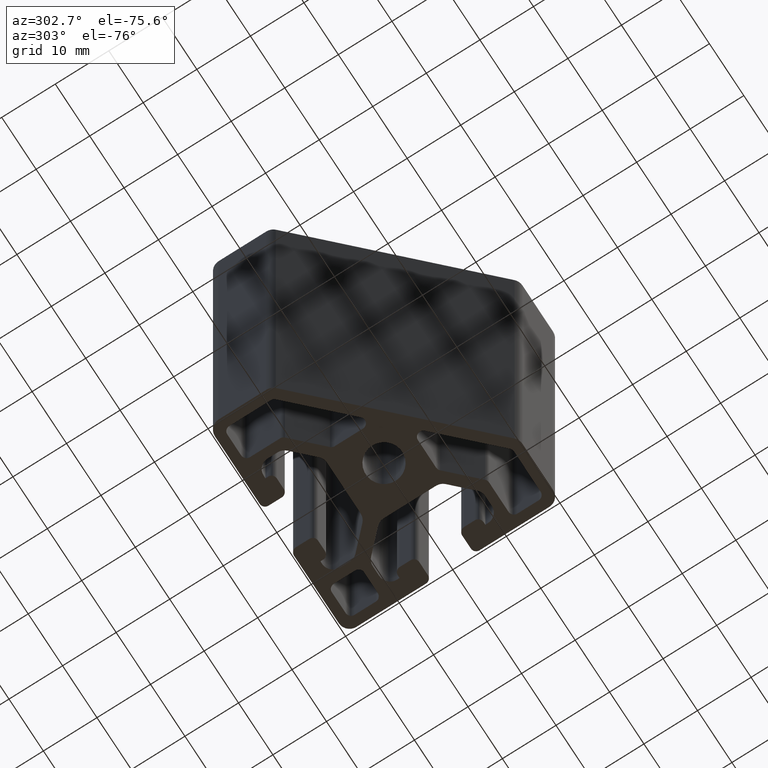
[diagram: clean part render]
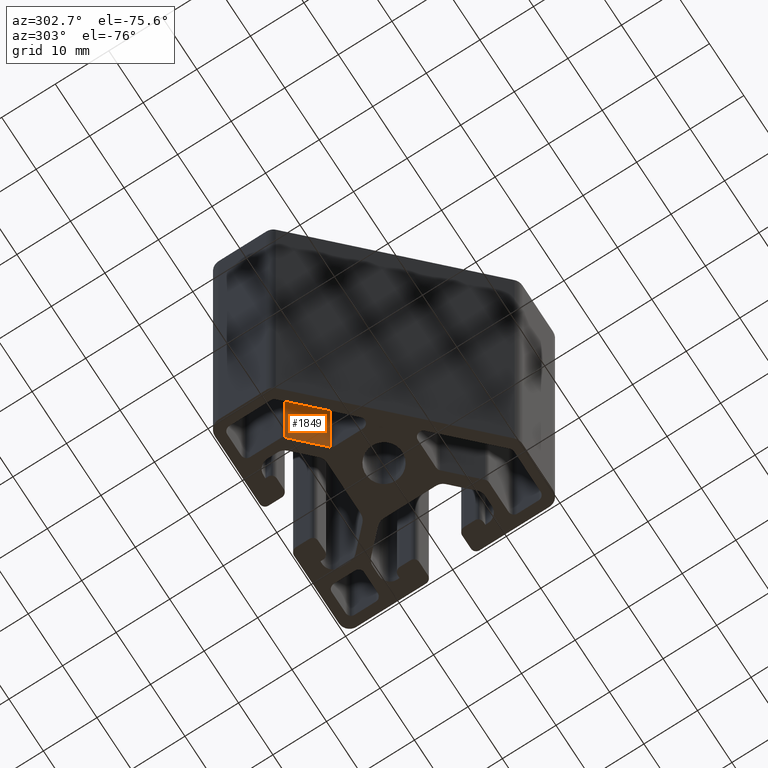
[diagram: same view with one face highlighted and labeled with its STEP entity id]
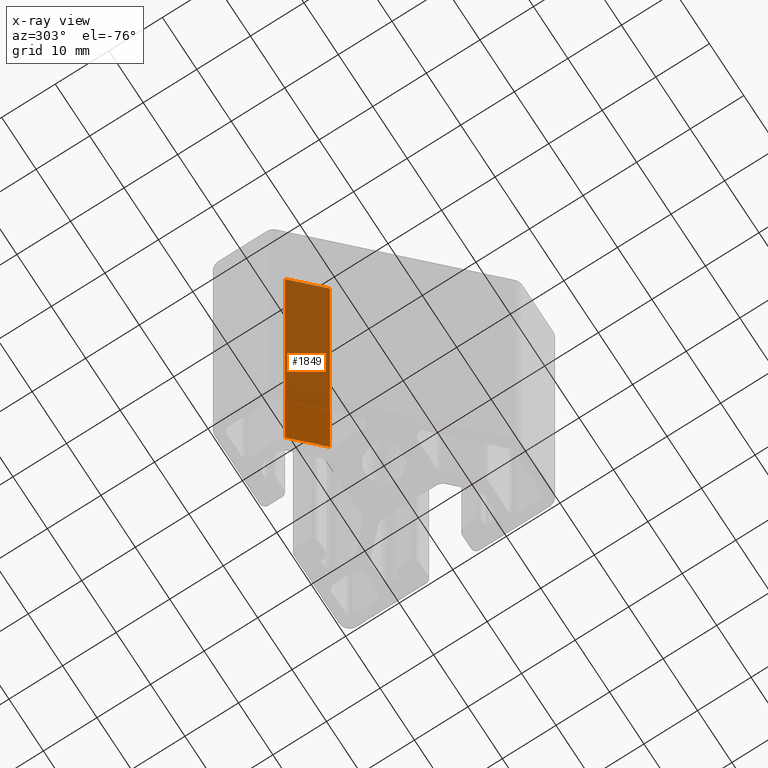
[diagram: x-ray of the same camera — body ghosted, the highlighted face saturated]
A machine part, auxiliary view. The second image highlights one B-rep face of the part: STEP entity #1849.
The next image is the same camera in x-ray: the body ghosted, the highlighted face saturated — about 77% of this face is hidden behind the body in this view.
In plain terms, the highlighted planar face has unit normal (0.7071, 0.7071, 0).
Its self-contained STEP definition (entity closure, byte-faithful):
#27=PLANE('',#1956);
#82=FACE_OUTER_BOUND('',#179,.T.);
#179=EDGE_LOOP('',(#1256,#1257,#1258,#1259));
#291=LINE('',#2747,#483);
#292=LINE('',#2750,#484);
#293=LINE('',#2752,#485);
#294=LINE('',#2753,#486);
#483=VECTOR('',#2175,100.);
#484=VECTOR('',#2178,7.23259100752928);
#485=VECTOR('',#2179,7.23259100752928);
#486=VECTOR('',#2180,100.);
#768=VERTEX_POINT('',#2743);
#769=VERTEX_POINT('',#2745);
#770=VERTEX_POINT('',#2749);
#771=VERTEX_POINT('',#2751);
#965=EDGE_CURVE('',#769,#768,#291,.T.);
#966=EDGE_CURVE('',#768,#770,#292,.T.);
#967=EDGE_CURVE('',#771,#769,#293,.T.);
#968=EDGE_CURVE('',#771,#770,#294,.T.);
#1256=ORIENTED_EDGE('',*,*,#966,.F.);
#1257=ORIENTED_EDGE('',*,*,#965,.F.);
#1258=ORIENTED_EDGE('',*,*,#967,.F.);
#1259=ORIENTED_EDGE('',*,*,#968,.T.);
#1849=ADVANCED_FACE('',(#82),#27,.F.);
#1956=AXIS2_PLACEMENT_3D('',#2748,#2176,#2177);
#2175=DIRECTION('',(0.,0.,1.));
#2176=DIRECTION('center_axis',(0.707106781186545,0.70710678118655,0.));
#2177=DIRECTION('ref_axis',(-0.70710678118655,0.707106781186545,0.));
#2178=DIRECTION('',(0.70710678118655,-0.707106781186545,0.));
#2179=DIRECTION('',(-0.70710678118655,0.707106781186545,0.));
#2180=DIRECTION('',(0.,0.,1.));
#2743=CARTESIAN_POINT('',(-11.9071067811865,10.8464466094066,100.));
#2745=CARTESIAN_POINT('',(-11.9071067811865,10.8464466094066,0.));
#2747=CARTESIAN_POINT('',(-11.9071067811865,10.8464466094066,0.));
#2748=CARTESIAN_POINT('Origin',(-6.7928926342137,5.73223246243384,0.));
#2749=CARTESIAN_POINT('',(-6.7928926342137,5.73223246243384,100.));
#2750=CARTESIAN_POINT('',(-3.66161136005181,2.60095118827196,100.));
#2751=CARTESIAN_POINT('',(-6.7928926342137,5.73223246243384,0.));
#2752=CARTESIAN_POINT('',(-3.66161136005181,2.60095118827196,0.));
#2753=CARTESIAN_POINT('',(-6.7928926342137,5.73223246243384,0.));